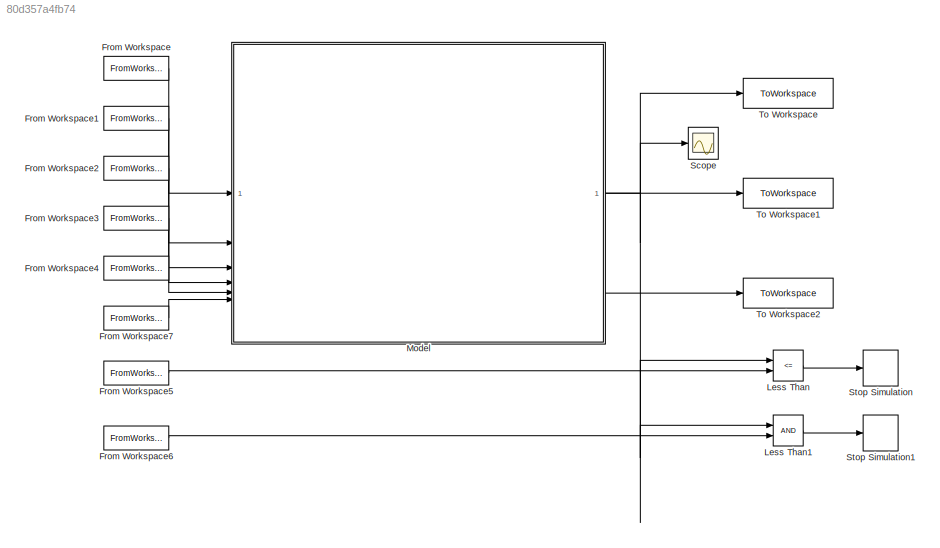
MODEL slx_80d357a4fb74
KIND model
CONFIG AbsTol = auto
CONFIG EnableMultiTasking = off
CONFIG FixedStep = 0.1
CONFIG MaxStep = auto
CONFIG MinStep = 0.1
CONFIG RelTol = 1e-3
CONFIG SampleTimeConstraint = Unconstrained
CONFIG SolverName = VariableStepAuto
CONFIG StartTime = 0.0
CONFIG StopTime = 80000.0
BLOCK [FromWorkspace] From Workspace
  VariableName = current
BLOCK [FromWorkspace] From Workspace1
  VariableName = init_cap
BLOCK [FromWorkspace] From Workspace2
  VariableName = storage_time
BLOCK [FromWorkspace] From Workspace3
  VariableName = temperature
BLOCK [FromWorkspace] From Workspace4
  VariableName = init_cycle_n
BLOCK [FromWorkspace] From Workspace5
  OutputAfterFinalValue = Holding final value
  VariableName = v_min
BLOCK [FromWorkspace] From Workspace6
  OutputAfterFinalValue = Holding final value
  VariableName = v_max
BLOCK [FromWorkspace] From Workspace7
  VariableName = init_soc
BLOCK [RelationalOperator] Less Than
  InputSameDT = off
  Operator = <=
  OutDataTypeStr = boolean
  RndMeth = Simplest
BLOCK [RelationalOperator] Less Than1
  InputSameDT = off
  OutDataTypeStr = boolean
  RndMeth = Simplest
BLOCK [ModelReference] Model
  ModelNameDialog = complete_model.slx
  ModelReferenceVersion = 2.37
BLOCK [Scope] Scope
  Floating = off
  NumInputPorts = 1
  ScopeSpecificationString = Simulink.scopes.TimeScopeBlockCfg('CurrentConfiguration', extmgr.ConfigurationSet(extmgr.Configuration('Core','General UI',true),extmgr.Configuration('Core','Source UI',true),extmgr.Configuration('Sources','WiredSimulink',true),extmgr.Configuration('Visuals','Time Domain',true,'SerializedDisplays',{struct('MinYLimReal','2.06185','MaxYLimReal','4.31382','YLabelReal','','MinYLimMag','2.06185','MaxYL...<+1404ch>
BLOCK [Stop] Stop Simulation
BLOCK [Stop] Stop Simulation1
BLOCK [ToWorkspace] To Workspace
  FixptAsFi = on
  MaxDataPoints = inf
  SampleTime = -1
  Save2DSignal = 2-D array (concatenate along first dimension)
  SaveFormat = Timeseries
  VariableName = v_batt
BLOCK [ToWorkspace] To Workspace1
  FixptAsFi = on
  MaxDataPoints = inf
  SampleTime = -1
  Save2DSignal = 2-D array (concatenate along first dimension)
  SaveFormat = Timeseries
  VariableName = ccf
BLOCK [ToWorkspace] To Workspace2
  FixptAsFi = on
  MaxDataPoints = inf
  SampleTime = -1
  Save2DSignal = 2-D array (concatenate along first dimension)
  SaveFormat = Timeseries
  VariableName = soc
LINE From Workspace1:1 -> Model:2
LINE From Workspace2:1 -> Model:3
LINE From Workspace3:1 -> Model:4
LINE From Workspace4:1 -> Model:5
LINE From Workspace5:1 -> Less Than:2
LINE From Workspace6:1 -> Less Than1:2
LINE From Workspace7:1 -> Model:6
LINE From Workspace:1 -> Model:1
LINE Less Than1:1 -> Stop Simulation1:1
LINE Less Than:1 -> Stop Simulation:1
NET Model:1 -> Less Than1:1, Less Than:1, Scope:1, To Workspace:1
LINE Model:2 -> To Workspace1:1
LINE Model:3 -> To Workspace2:1
note: NET lines group one-source signal fan-out (src -> all destinations, sorted); 1:1 wires keep LINE
